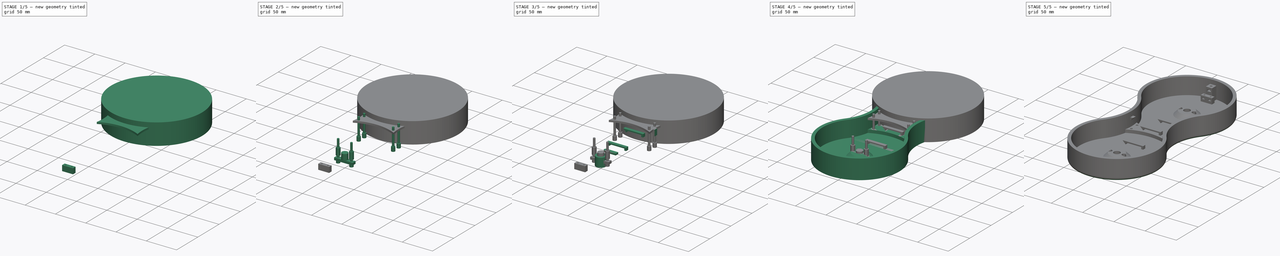
[diagram: build sequence overview — one tinted view per stage of 5, left to right]
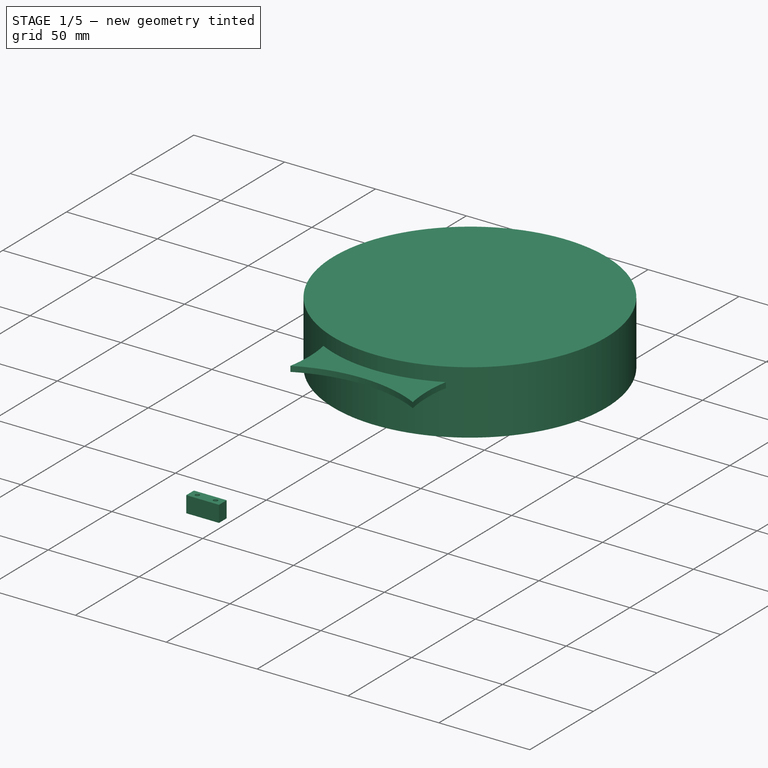
[diagram: stage 1 of 5 — iso view after this stage's code; geometry added in this stage tinted green]
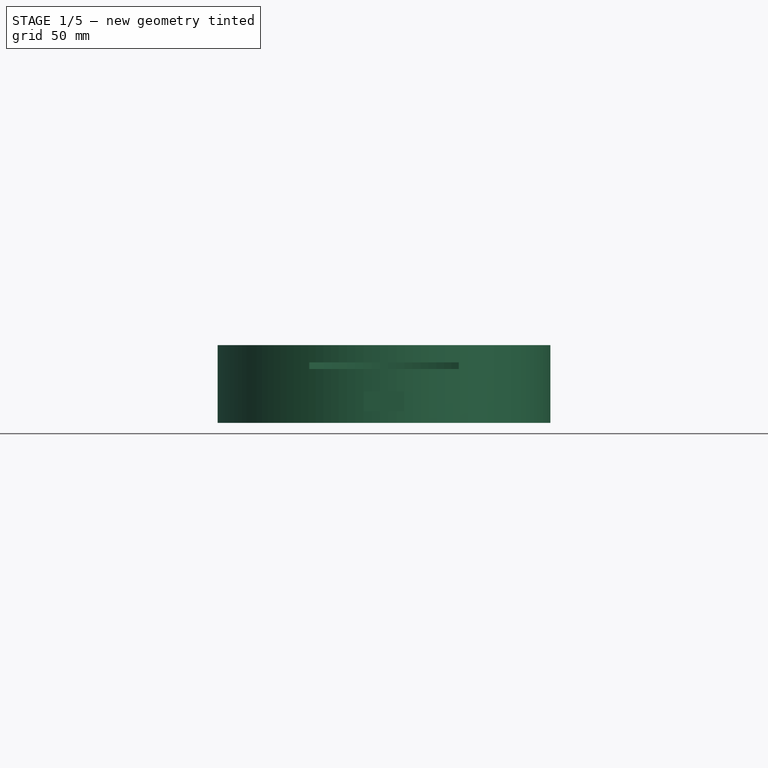
[diagram: stage 1 of 5 — front view after this stage's code; geometry added in this stage tinted green]
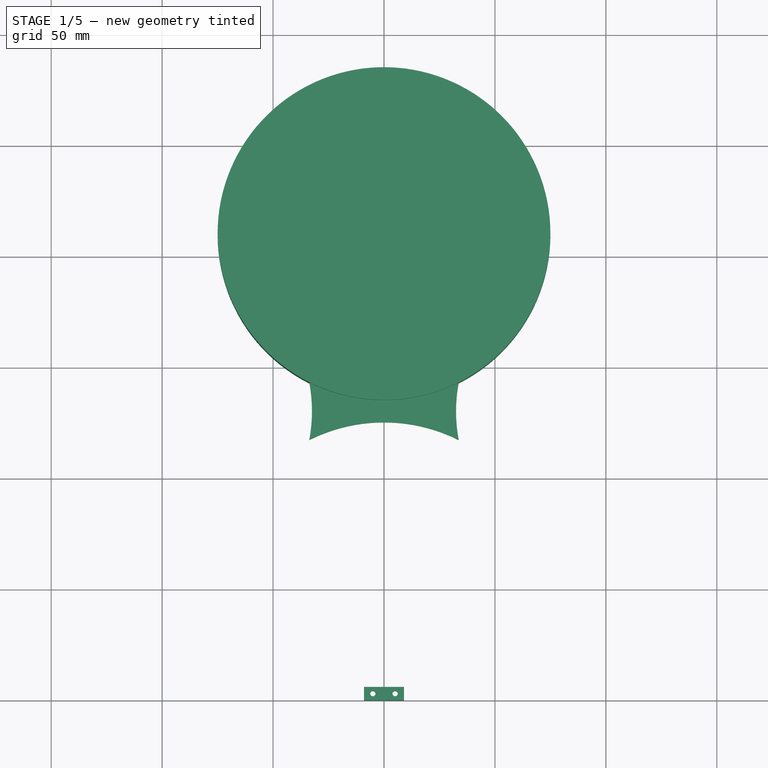
[diagram: stage 1 of 5 — top view after this stage's code; geometry added in this stage tinted green]
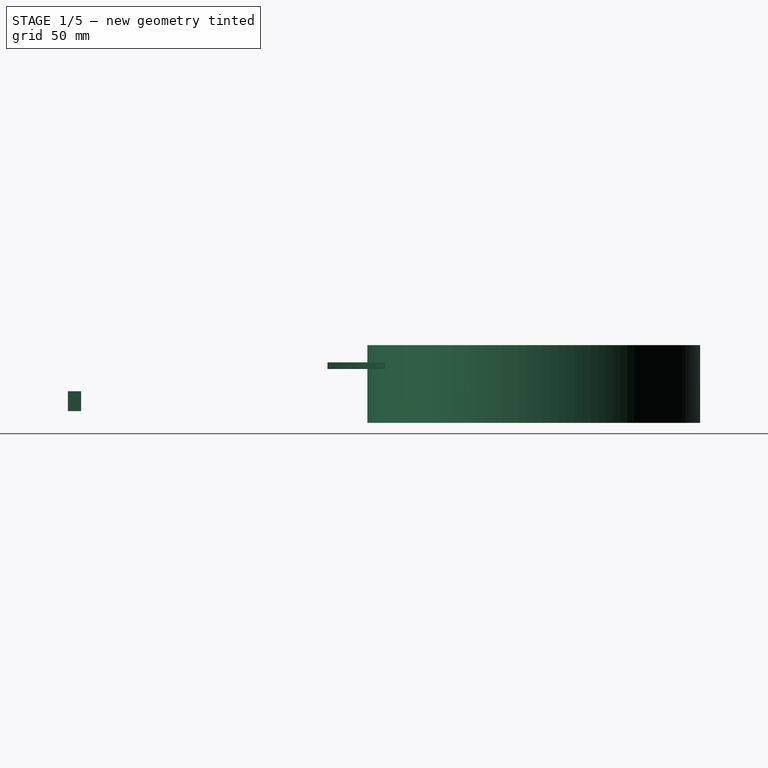
[diagram: stage 1 of 5 — right view after this stage's code; geometry added in this stage tinted green]
FCSTD DOCUMENT  (FreeCAD 0.16R6703 (Git))
Label: Art2BodyB
License: All rights reserved
LicenseURL: http://en.wikipedia.org/wiki/All_rights_reserved
objects: Part::FeaturePython×32, Sketcher::SketchObject×12, PartDesign::Pad×11, Part::MultiFuse×8, Part::Cut×8, Part::Cylinder×6, Part::Box×3, Part::Prism×1, PartDesign::Revolution×1, Part::Thickness×1, Part::Fillet×1, App::DocumentObjectGroup×1
note: 96 computed .brp shape members not serialized (recipe doc carries the construction recipe); baked Part::Feature solids carry a one-line shape summary decoded from their .brp

FEATURE [Part::Cylinder] Cylinder1061  label="M2BoltHead"
  Angle = 360
  Height = 7
  Radius = 2.1
FEATURE [Part::Cylinder] Cylinder1062  label="M2BoltBody"
  Angle = 360
  Height = 30
  Placement = pos=(0,0,6) rot=(0,0,1;0rad)
  Radius = 1.2
FEATURE [Part::MultiFuse] Fusion158  label="M2Bolt "
  Shapes = -> [Cylinder1062,Cylinder1061]
FEATURE [Part::Box] Box  label="Cube"
  Height = 9
  Length = 18
  Width = 6
FEATURE [Sketcher::SketchObject] Sketch079  label="M2NutHousingSketch"
  sketch-geometry (5):
    g0: LineSegment StartX=0 StartY=0 StartZ=0 EndX=1.18357 EndY=2.05 EndZ=0
    g1: LineSegment StartX=1.18357 StartY=2.05 StartZ=0 EndX=21.1836 EndY=2.05 EndZ=0
    g2: LineSegment StartX=21.1836 StartY=2.05 StartZ=0 EndX=21.1836 EndY=-2.05 EndZ=0
    g3: LineSegment StartX=21.1836 StartY=-2.05 StartZ=0 EndX=1.18357 EndY=-2.05 EndZ=0
    g4: LineSegment StartX=1.18357 StartY=-2.05 StartZ=0 EndX=0 EndY=0 EndZ=0
  constraints (14):
    c: Coincident(g-1,g0)
    c: Coincident(g0,g1)
    c: Horizontal(g1)
    c: Coincident(g1,g2)
    c: Vertical(g2)
    c: Coincident(g2,g3)
    c: Horizontal(g3)
    c: Coincident(g3,g4)
    c: Coincident(g4,g0)
    c: Equal(g3,g1)
    c: Equal(g4,g0)
    c: DistanceY(g2) = -4.1
    c: Angle(g-1,g0) = 1.0472
    c: DistanceX(g3) = -20
FEATURE [PartDesign::Pad] Pad048  label="M2NutHousing"
  Length = 1.7
  Length2 = 100
  Sketch = -> Sketch079
  Type = 0
FEATURE [Part::FeaturePython] Clone419  label="Clone of M2NutHousing"  # Draft clone (typed FeaturePython)
  Objects = -> [Pad048]
  Placement = pos=(4,5.7,4) rot=(0,0,-1;1.5708rad)
  Scale = (1,1,1)
FEATURE [Part::FeaturePython] Clone420  label="Clone of M2NutHousing001"  # Draft clone (typed FeaturePython)
  Objects = -> [Pad048]
  Placement = pos=(14,5.7,4) rot=(0,0,-1;1.5708rad)
  Scale = (1,1,1)
FEATURE [Part::FeaturePython] Clone421  label="Clone of M2Bolt 002"  # Draft clone (typed FeaturePython)
  Objects = -> [Fusion158]
  Placement = pos=(4,3,35) rot=(0.707107,0.707107,0;3.14159rad)
  Scale = (1,1,1)
FEATURE [Part::FeaturePython] Clone422  label="Clone of M2Bolt 003"  # Draft clone (typed FeaturePython)
  Objects = -> [Fusion158]
  Placement = pos=(14,3,35) rot=(0.707107,0.707107,0;3.14159rad)
  Scale = (1,1,1)
FEATURE [Part::MultiFuse] Fusion160
  Shapes = -> [Clone422,Clone421,Clone420,Clone419]
FEATURE [Part::Cut] Cut141  label="Art2BOptoPCBFixMaster"
  Base = -> Box
  Tool = -> Fusion160
FEATURE [Part::FeaturePython] Clone424  label="Clone of Art2BOptoPCBFixMaster001"  # Draft clone (typed FeaturePython)
  Objects = -> [Cut141]
  Placement = pos=(9,-44,5) rot=(0,0,1;3.14159rad)
  Scale = (1,1,1)
FEATURE [PartDesign::Pad] Pad049
  Length = 35
  Length2 = 100
  Placement = pos=(0,0,-0.25) rot=(0,0,1;0rad)
  Sketch = -> Sketch029
  Type = 0
FEATURE [Sketcher::SketchObject] Sketch080
  Placement = pos=(0,0,24) rot=(0,0,1;0rad)
  sketch-geometry (6):
    g0: ArcOfCircle CenterX=0 CenterY=0 CenterZ=0 NormalX=0 NormalY=0 NormalZ=1 Radius=75 StartAngle=1.10499 EndAngle=2.0366
    g1: ArcOfCircle CenterX=0 CenterY=160 CenterZ=0 NormalX=0 NormalY=0 NormalZ=1 Radius=75 StartAngle=4.24659 EndAngle=5.17819
    g2: ArcOfCircle CenterX=102.47 CenterY=80 CenterZ=0 NormalX=0 NormalY=0 NormalZ=1 Radius=70 StartAngle=2.95493 EndAngle=3.32825
    g3: ArcOfCircle CenterX=-102.47 CenterY=80 CenterZ=0 NormalX=0 NormalY=0 NormalZ=1 Radius=70 StartAngle=6.09653 EndAngle=6.46984
    g4: LineSegment [constr] StartX=-102.47 StartY=80 StartZ=0 EndX=102.47 EndY=80 EndZ=0
    g5: Circle [constr] CenterX=0 CenterY=160 CenterZ=0 NormalX=0 NormalY=0 NormalZ=1 Radius=60
  constraints (19):
    c: Coincident(g0,g-1)
    c: PointOnObject(g1,g-2)
    c: Coincident(g2,g1)
    c: Coincident(g2,g0)
    c: Coincident(g3,g1)
    c: Coincident(g3,g0)
    c: Equal(g1,g0)
    c: Equal(g3,g2)
    c: Coincident(g4,g3)
    c: Coincident(g4,g2)
    c: Horizontal(g4)
    c: Radius(g0) = 75
    c: DistanceY(g-1,g1) = 160
    c: DistanceY(g-1,g2) = 80
    c: Radius(g2) = 70
    c: Symmetric(g2,g3,g-2)
    c: Coincident(g5,g1)
    c: Radius(g5) = 60
    c: Tangent(g5,g2)
FEATURE [PartDesign::Pad] Pad051
  Length = 3
  Length2 = 100
  Placement = pos=(0,0,24) rot=(0,0,1;0rad)
  Sketch = -> Sketch080
  Type = 0
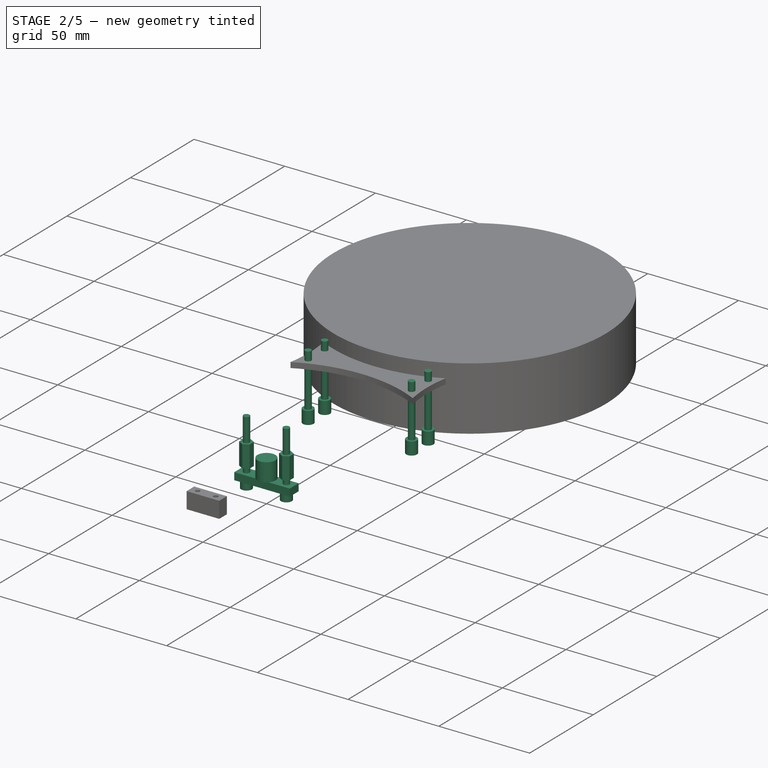
[diagram: stage 2 of 5 — iso view after this stage's code; geometry added in this stage tinted green]
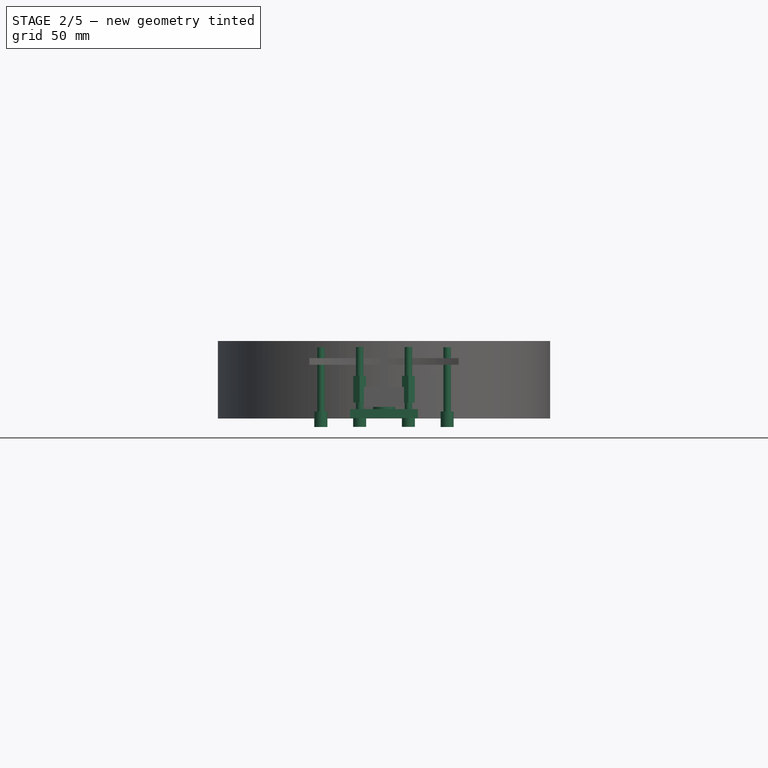
[diagram: stage 2 of 5 — front view after this stage's code; geometry added in this stage tinted green]
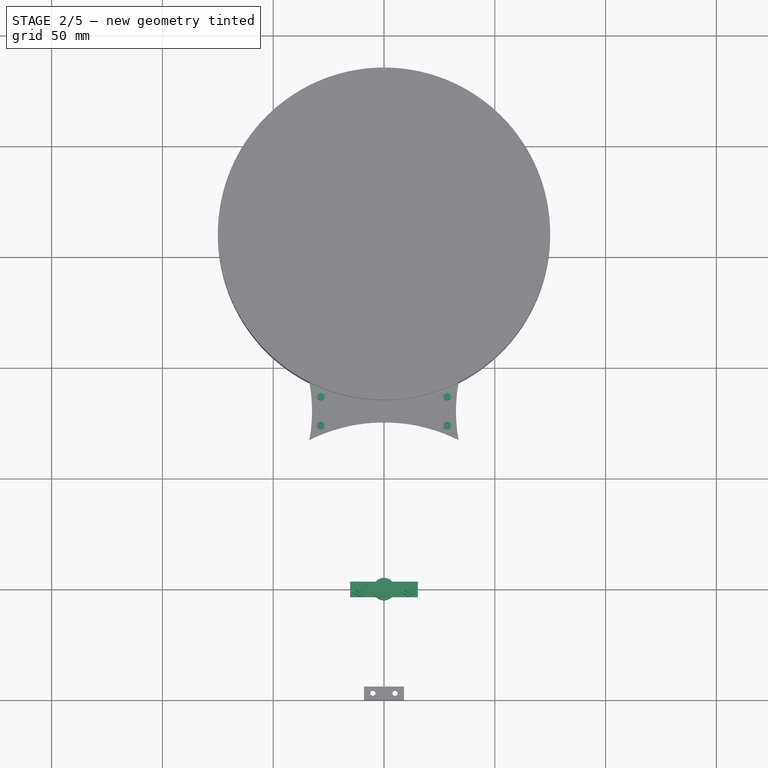
[diagram: stage 2 of 5 — top view after this stage's code; geometry added in this stage tinted green]
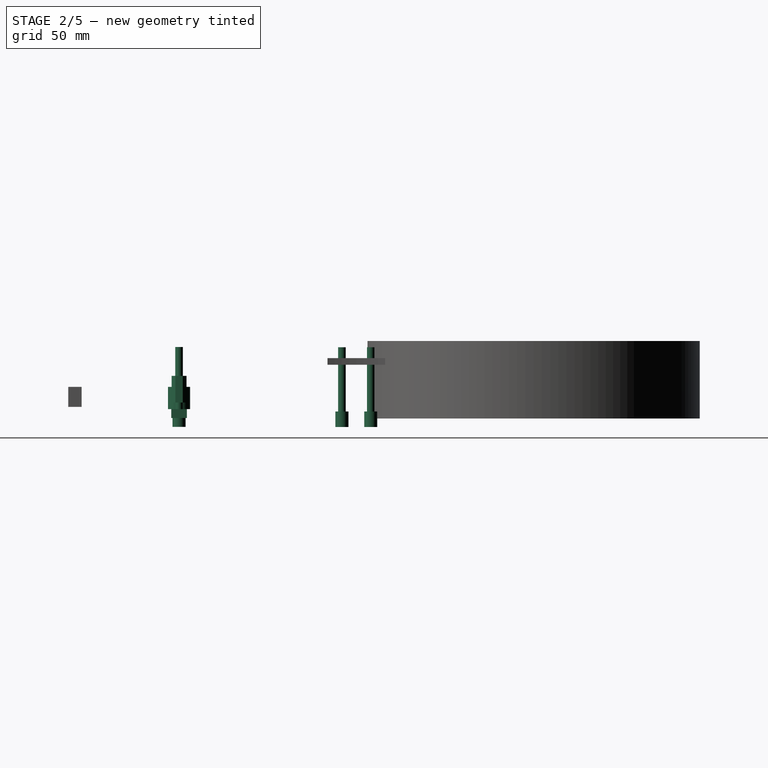
[diagram: stage 2 of 5 — right view after this stage's code; geometry added in this stage tinted green]
FEATURE [Part::Cylinder] Cylinder  label="M3BoltHead"
  Angle = 360
  Height = 7
  Radius = 2.95
FEATURE [Part::Cylinder] Cylinder001  label="M3BoltBody"
  Angle = 360
  Height = 30
  Placement = pos=(0,0,6) rot=(0,0,1;0rad)
  Radius = 1.7
FEATURE [Part::MultiFuse] Fusion  label="M3Bolt"
  Shapes = -> [Cylinder001,Cylinder]
FEATURE [Part::Prism] Prism  label="M3Nut"
  Circumradius = 3.35
  Height = 12
  Polygon = 6
FEATURE [Part::Cylinder] Cylinder1015  label="Cylinder021"
  Angle = 360
  Height = 10
  Placement = pos=(0,0,4) rot=(0,0,1;0rad)
  Radius = 5
FEATURE [Part::Box] Box251  label="Cube015"
  Height = 4
  Length = 30.6
  Placement = pos=(-15.3,-3.5,0) rot=(0,0,1;0rad)
  Width = 7
FEATURE [Part::FeaturePython] Clone137  label="Clone of M3Bolt039"  # Draft clone (typed FeaturePython)
  Objects = -> [Fusion]
  Placement = pos=(11,0,-4) rot=(0,0,1;0rad)
  Scale = (1,1,1)
FEATURE [Part::FeaturePython] Clone138  label="Clone of M3Bolt040"  # Draft clone (typed FeaturePython)
  Objects = -> [Fusion]
  Placement = pos=(-11,0,-4) rot=(0,0,1;0rad)
  Scale = (1,1,1)
FEATURE [Part::FeaturePython] Clone139  label="Clone of M3Nut005"  # Draft clone (typed FeaturePython)
  Objects = -> [Prism]
  Placement = pos=(11,0,7) rot=(0,0,1;0.523599rad)
  Scale = (1,1,1)
FEATURE [Part::FeaturePython] Clone140  label="Clone of M3Nut006"  # Draft clone (typed FeaturePython)
  Objects = -> [Prism]
  Placement = pos=(-11,0,7) rot=(0,0,1;0.523599rad)
  Scale = (1,1,1)
FEATURE [Part::FeaturePython] Clone161  label="Clone of M3Bolt041"  # Draft clone (typed FeaturePython)
  Objects = -> [Fusion]
  Placement = pos=(28.5,73.5,-4.1) rot=(0,0,1;0rad)
  Scale = (1,1,1)
FEATURE [Part::FeaturePython] Clone162  label="Clone of M3Bolt042"  # Draft clone (typed FeaturePython)
  Objects = -> [Fusion]
  Placement = pos=(28.5,86.5,-4.1) rot=(0,0,1;0rad)
  Scale = (1,1,1)
FEATURE [Part::FeaturePython] Clone163  label="Clone of M3Bolt043"  # Draft clone (typed FeaturePython)
  Objects = -> [Fusion]
  Placement = pos=(-28.5,86.5,-4.1) rot=(0,0,1;0rad)
  Scale = (1,1,1)
FEATURE [Part::FeaturePython] Clone164  label="Clone of M3Bolt044"  # Draft clone (typed FeaturePython)
  Objects = -> [Fusion]
  Placement = pos=(-28.5,73.5,-4.1) rot=(0,0,1;0rad)
  Scale = (1,1,1)
FEATURE [Part::FeaturePython] Clone423  label="Clone of Art2BOptoPCBFixMaster"  # Draft clone (typed FeaturePython)
  Objects = -> [Cut141]
  Placement = pos=(-9,204,5) rot=(0,0,1;0rad)
  Scale = (1,1,1)
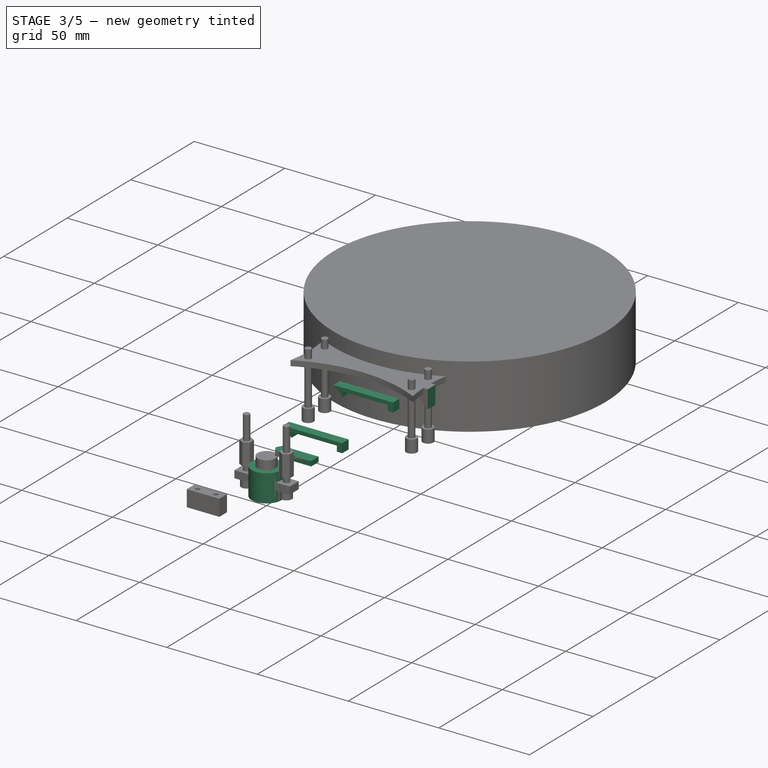
[diagram: stage 3 of 5 — iso view after this stage's code; geometry added in this stage tinted green]
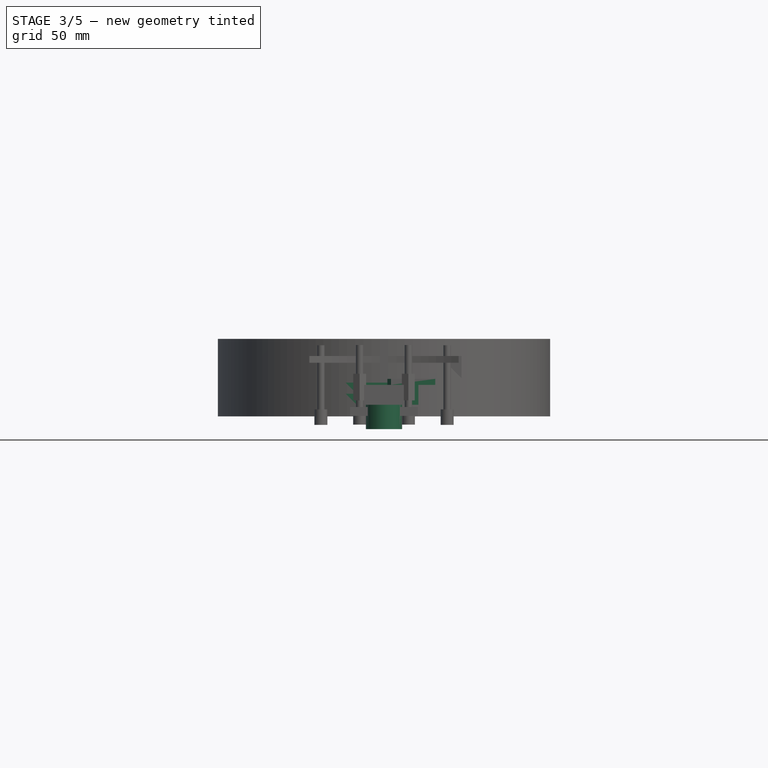
[diagram: stage 3 of 5 — front view after this stage's code; geometry added in this stage tinted green]
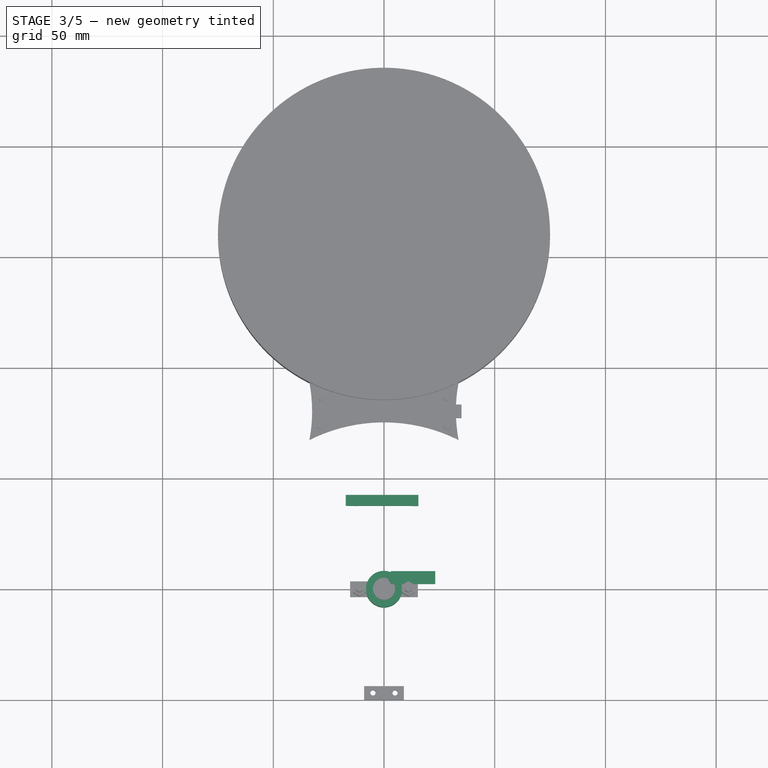
[diagram: stage 3 of 5 — top view after this stage's code; geometry added in this stage tinted green]
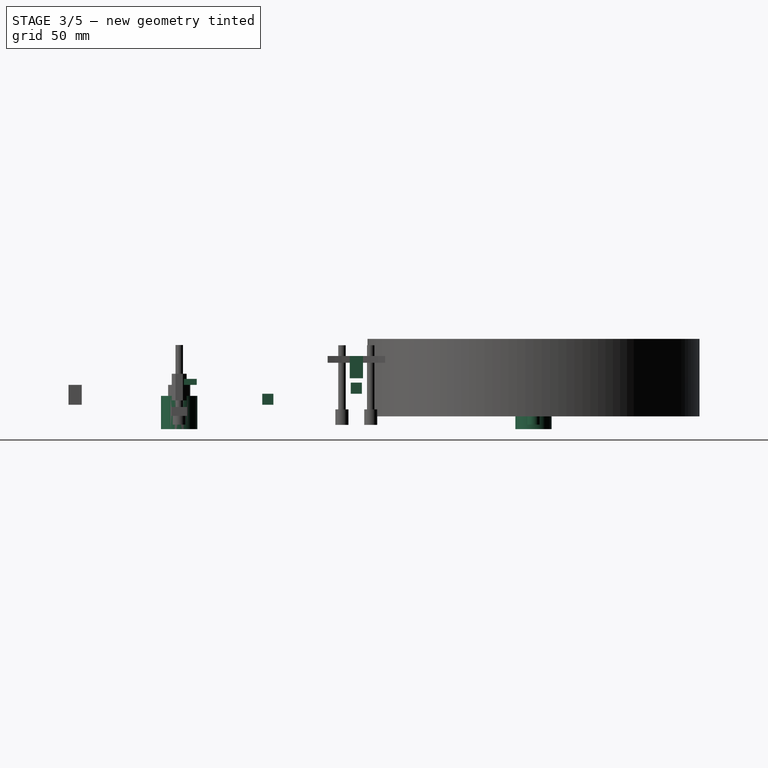
[diagram: stage 3 of 5 — right view after this stage's code; geometry added in this stage tinted green]
FEATURE [Sketcher::SketchObject] Sketch003  label="M3NutHousingSketch"
  sketch-geometry (5):
    g0: LineSegment StartX=0 StartY=0 StartZ=0 EndX=1.67432 EndY=2.9 EndZ=0
    g1: LineSegment StartX=1.67432 StartY=2.9 StartZ=0 EndX=21.6743 EndY=2.9 EndZ=0
    g2: LineSegment StartX=21.6743 StartY=2.9 StartZ=0 EndX=21.6743 EndY=-2.9 EndZ=0
    g3: LineSegment StartX=21.6743 StartY=-2.9 StartZ=0 EndX=1.67432 EndY=-2.9 EndZ=0
    g4: LineSegment StartX=1.67432 StartY=-2.9 StartZ=0 EndX=0 EndY=0 EndZ=0
  constraints (14):
    c: Coincident(g-1,g0)
    c: Coincident(g0,g1)
    c: Horizontal(g1)
    c: Coincident(g1,g2)
    c: Vertical(g2)
    c: Coincident(g2,g3)
    c: Horizontal(g3)
    c: Coincident(g3,g4)
    c: Coincident(g4,g0)
    c: Equal(g3,g1)
    c: Equal(g4,g0)
    c: DistanceY(g2) = -5.8
    c: Angle(g-1,g0) = 1.0472
    c: DistanceX(g3) = -20
FEATURE [PartDesign::Pad] Pad002  label="M3NutHousing"
  Length = 2.7
  Length2 = 100
  Sketch = -> Sketch003
  Type = 0
FEATURE [Part::Cylinder] Cylinder1003  label="Bearing625ZZMaster"
  Angle = 360
  Height = 15
  Radius = 8.2
FEATURE [Sketcher::SketchObject] Sketch025
  sketch-geometry (3):
    g0: LineSegment StartX=0 StartY=0 StartZ=0 EndX=0 EndY=10 EndZ=0
    g1: LineSegment StartX=0 StartY=10 StartZ=0 EndX=10 EndY=0 EndZ=0
    g2: LineSegment StartX=10 StartY=0 StartZ=0 EndX=0 EndY=0 EndZ=0
  constraints (8):
    c: Coincident(g-1,g0)
    c: PointOnObject(g0,g-2)
    c: Coincident(g0,g1)
    c: PointOnObject(g1,g-1)
    c: Coincident(g1,g2)
    c: Coincident(g2,g0)
    c: DistanceY(g0) = 10
    c: Angle(g1,g2) = 0.785398
FEATURE [PartDesign::Pad] Pad017  label="Art2CoverArmSupportMaster"
  Length = 6
  Length2 = 100
  Sketch = -> Sketch025
  Type = 0
FEATURE [Part::FeaturePython] Clone119  label="Clone of M3NutHousing009"  # Draft clone (typed FeaturePython)
  Objects = -> [Pad002]
  Placement = pos=(1.5,5,14) rot=(0,0,1;0rad)
  Scale = (1,1,1)
FEATURE [Part::FeaturePython] Clone136  label="Clone of Bearing625ZZMaster"  # Draft clone (typed FeaturePython)
  Objects = -> [Cylinder1003]
  Placement = pos=(0,0,-6) rot=(0,0,1;0rad)
  Scale = (1,1,1)
FEATURE [Part::MultiFuse] Fusion062  label="Bearing625zzHoles"
  Shapes = -> [Clone140,Clone139,Box251,Clone137,Clone138,Cylinder1015,Clone136]
FEATURE [Part::FeaturePython] Clone155  label="Clone of Art2CoverArmSupportMaster005"  # Draft clone (typed FeaturePython)
  Objects = -> [Pad017]
  Placement = pos=(35,77,27) rot=(-0.57735,0.57735,0.57735;2.0944rad)
  Scale = (1,1,1)
FEATURE [Sketcher::SketchObject] Sketch028
  Placement = pos=(0,0,0) rot=(1,0,0;1.5708rad)
  sketch-geometry (7):
    g0: LineSegment StartX=12.5 StartY=0 StartZ=0 EndX=12.5 EndY=3 EndZ=0
    g1: LineSegment StartX=12.5 StartY=3 StartZ=0 EndX=-12.5 EndY=3 EndZ=0
    g2: LineSegment StartX=-12.5 StartY=3 StartZ=0 EndX=-12.5 EndY=0.2 EndZ=0
    g3: LineSegment StartX=-12.5 StartY=0.2 StartZ=0 EndX=-17.3 EndY=5 EndZ=0
    g4: LineSegment StartX=-17.3 StartY=5 StartZ=0 EndX=15.5 EndY=5 EndZ=0
    g5: LineSegment StartX=15.5 StartY=5 StartZ=0 EndX=15.5 EndY=0 EndZ=0
    g6: LineSegment StartX=15.5 StartY=0 StartZ=0 EndX=12.5 EndY=0 EndZ=0
  constraints (21):
    c: Vertical(g0)
    c: Coincident(g0,g1)
    c: Horizontal(g1)
    c: Coincident(g1,g2)
    c: Coincident(g2,g3)
    c: Horizontal(g4)
    c: Coincident(g4,g5)
    c: Vertical(g5)
    c: Coincident(g5,g6)
    c: Coincident(g6,g0)
    c: Coincident(g3,g4)
    c: Angle(g-1,g3) = 2.35619
    c: Vertical(g2)
    c: DistanceY(g0,g4) = 2
    c: Horizontal(g6)
    c: DistanceX(g6) = -3
    c: DistanceY(g5) = -5
    c: PointOnObject(g0,g-1)
    c: DistanceX(g1) = -25
    c: DistanceY(g3,g2) = -4.8
    c: DistanceX(g-1,g0) = 12.5
FEATURE [PartDesign::Pad] Pad020  label="Art2WireHolder"
  Length = 5
  Length2 = 100
  Midplane = true
  Placement = pos=(0,0,0) rot=(1,0,0;1.5708rad)
  Sketch = -> Sketch028
  Type = 0
FEATURE [Part::FeaturePython] Clone156  label="Clone of Art2WireHolder"  # Draft clone (typed FeaturePython)
  Objects = -> [Pad020]
  Placement = pos=(0,80,10) rot=(1,0,0;1.5708rad)
  Scale = (1,1,1)
FEATURE [Part::FeaturePython] Clone157  label="Clone of Art2WireHolder001"  # Draft clone (typed FeaturePython)
  Objects = -> [Pad020]
  Placement = pos=(0,40,5) rot=(1,0,0;1.5708rad)
  Scale = (1,1,1)
FEATURE [Part::FeaturePython] Clone158  label="Clone of Art2WireHolder002"  # Draft clone (typed FeaturePython)
  Objects = -> [Pad020]
  Placement = pos=(0,120,5) rot=(1,0,0;1.5708rad)
  Scale = (1,1,1)
FEATURE [Part::FeaturePython] Clone159  label="Clone of Bearing622zzHoles001"  # Draft clone (typed FeaturePython)
  Objects = -> [Fusion062]
  Scale = (1,1,1)
FEATURE [Part::FeaturePython] Clone160  label="Clone of Bearing622zzHoles002"  # Draft clone (typed FeaturePython)
  Objects = -> [Fusion062]
  Placement = pos=(0,160,0) rot=(0,0,1;0rad)
  Scale = (1,1,1)
FEATURE [Part::MultiFuse] Fusion065
  Shapes = -> [Clone159,Clone163,Clone164,Clone162,Clone161,Clone160]
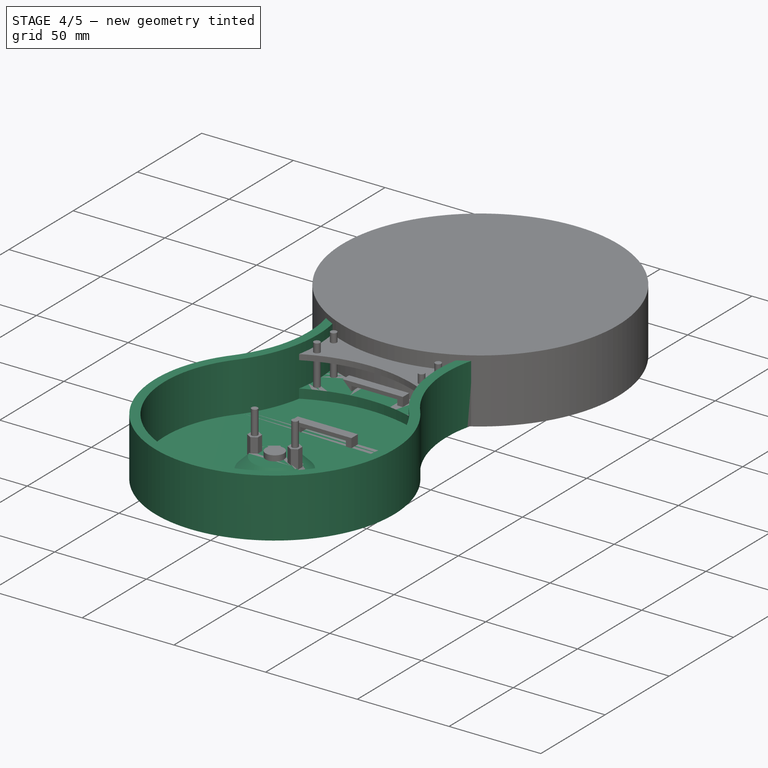
[diagram: stage 4 of 5 — iso view after this stage's code; geometry added in this stage tinted green]
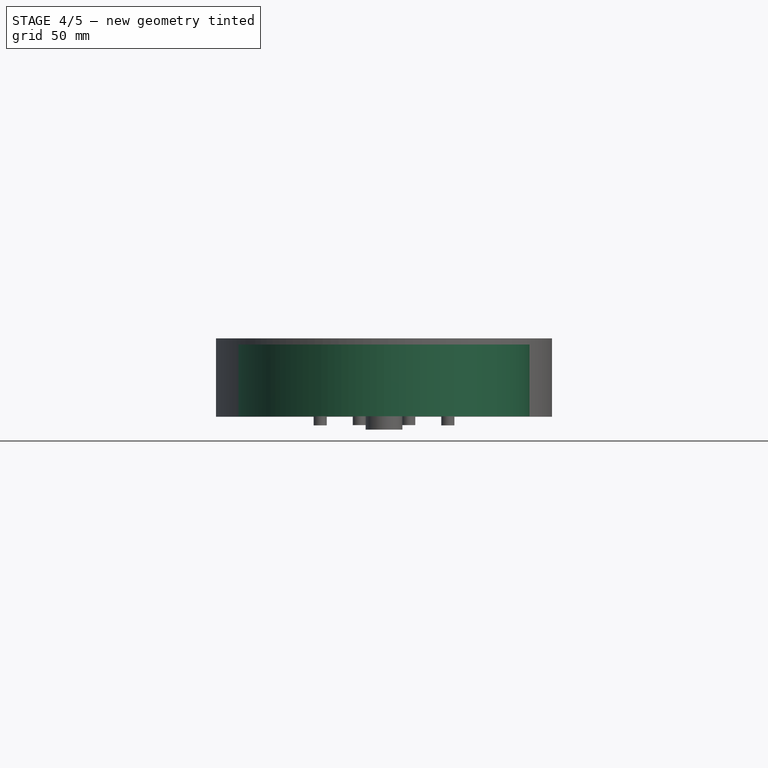
[diagram: stage 4 of 5 — front view after this stage's code; geometry added in this stage tinted green]
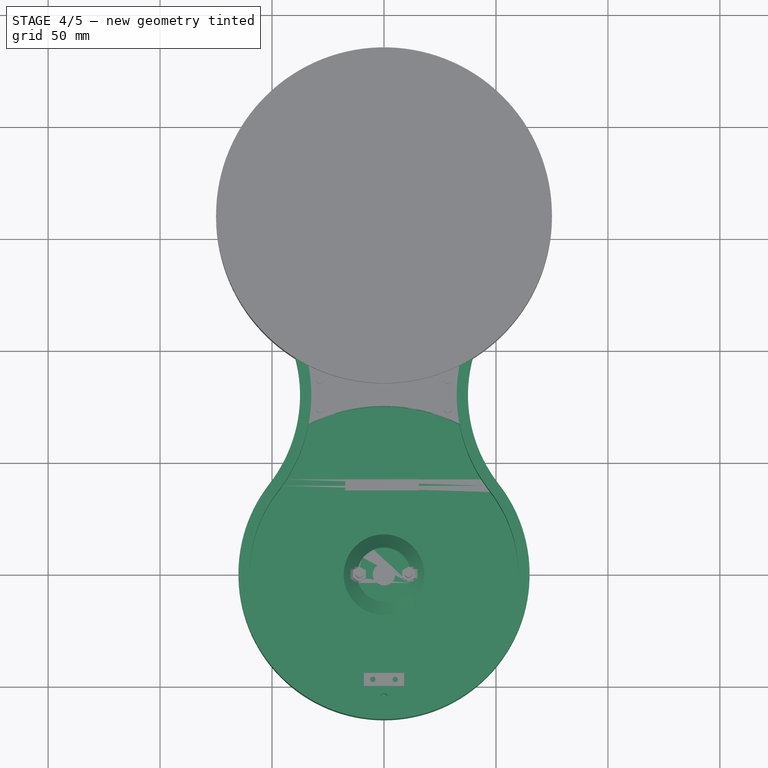
[diagram: stage 4 of 5 — top view after this stage's code; geometry added in this stage tinted green]
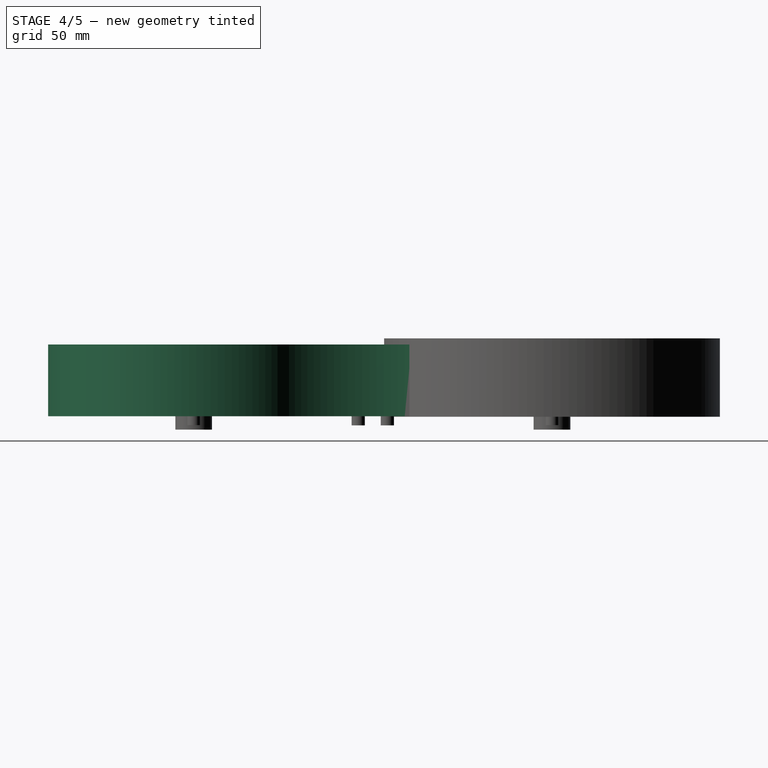
[diagram: stage 4 of 5 — right view after this stage's code; geometry added in this stage tinted green]
FEATURE [Sketcher::SketchObject] Sketch016
  sketch-geometry (4):
    g0: LineSegment StartX=0 StartY=0 StartZ=0 EndX=0 EndY=18 EndZ=0
    g1: LineSegment StartX=0 StartY=18 StartZ=0 EndX=6 EndY=12 EndZ=0
    g2: LineSegment StartX=6 StartY=12 StartZ=0 EndX=6 EndY=0 EndZ=0
    g3: LineSegment StartX=0 StartY=0 StartZ=0 EndX=6 EndY=0 EndZ=0
  constraints (11):
    c: Coincident(g0,g-1)
    c: Vertical(g0)
    c: Coincident(g1,g0)
    c: Coincident(g2,g1)
    c: PointOnObject(g2,g-1)
    c: Vertical(g2)
    c: Coincident(g3,g-1)
    c: Coincident(g3,g2)
    c: DistanceY(g2) = -12
    c: DistanceX(g3) = 6
    c: Angle(g1,g-1) = 0.785398
FEATURE [PartDesign::Revolution] Revolution003  label="625ZZBearingHousingNoHoles"
  Angle = 360
  Axis = (1,0,0)
  Base = (0,0,0)
  ReferenceAxis = -> Sketch016 [H_Axis]
  Sketch = -> Sketch016
FEATURE [Sketcher::SketchObject] Sketch020
  sketch-geometry (4):
    g0: ArcOfCircle CenterX=0 CenterY=0 CenterZ=0 NormalX=0 NormalY=0 NormalZ=1 Radius=65 StartAngle=2.47872 EndAngle=6.94606
    g1: ArcOfCircle CenterX=102.47 CenterY=80 CenterZ=0 NormalX=0 NormalY=0 NormalZ=1 Radius=65 StartAngle=2.47872 EndAngle=3.80447
    g2: ArcOfCircle CenterX=-102.47 CenterY=80 CenterZ=0 NormalX=0 NormalY=0 NormalZ=1 Radius=65 StartAngle=5.62031 EndAngle=6.94606
    g3: ArcOfCircle CenterX=0 CenterY=160 CenterZ=0 NormalX=0 NormalY=0 NormalZ=1 Radius=65 StartAngle=5.62031 EndAngle=10.0877
  constraints (15):
    c: Coincident(g0,g-1)
    c: Coincident(g1,g0)
    c: Coincident(g2,g0)
    c: Coincident(g3,g1)
    c: Equal(g1,g2)
    c: Equal(g3,g0)
    c: Tangent(g1,g3)
    c: Coincident(g2,g3)
    c: Tangent(g2,g3)
    c: Tangent(g1,g0)
    c: Equal(g0,g2)
    c: Tangent(g0,g2)
    c: DistanceY(g-1,g3) = 160
    c: Radius(g0) = 65
    c: PointOnObject(g3,g-2)
FEATURE [PartDesign::Pad] Pad013
  Length = 32
  Length2 = 100
  Sketch = -> Sketch020
  Type = 0
FEATURE [Part::Thickness] Thickness001  label="Art2ArmMaster"
  Faces = -> Pad013 [Face6]
  Intersection = false
  Join = 0
  Mode = 0
  SelfIntersection = false
  Value = -5
FEATURE [Sketcher::SketchObject] Sketch023
  Placement = pos=(0,0,5) rot=(0,0,1;0rad)
  sketch-geometry (5):
    g0: ArcOfCircle CenterX=0 CenterY=0 CenterZ=0 NormalX=0 NormalY=0 NormalZ=1 Radius=75 StartAngle=1.08528 EndAngle=2.05631
    g1: ArcOfCircle CenterX=0 CenterY=160 CenterZ=0 NormalX=0 NormalY=0 NormalZ=1 Radius=75 StartAngle=4.22687 EndAngle=5.19791
    g2: ArcOfCircle CenterX=115 CenterY=80 CenterZ=0 NormalX=0 NormalY=0 NormalZ=1 Radius=81.1591 StartAngle=2.97238 EndAngle=3.3108
    g3: ArcOfCircle CenterX=-115 CenterY=80 CenterZ=0 NormalX=0 NormalY=0 NormalZ=1 Radius=81.1591 StartAngle=6.11398 EndAngle=6.4524
    g4: LineSegment [constr] StartX=-115 StartY=80 StartZ=0 EndX=115 EndY=80 EndZ=0
  constraints (17):
    c: Coincident(g0,g-1)
    c: PointOnObject(g1,g-2)
    c: Coincident(g2,g1)
    c: Coincident(g2,g0)
    c: Coincident(g3,g1)
    c: Coincident(g3,g0)
    c: Equal(g1,g0)
    c: Equal(g3,g2)
    c: Coincident(g4,g3)
    c: Coincident(g4,g2)
    c: Horizontal(g4)
    c: Radius(g0) = 75
    c: DistanceY(g-1,g1) = 160
    c: DistanceY(g-1,g2) = 80
    c: DistanceX(g4) = 230
    c: DistanceX(g-1,g2) = 115
    c: DistanceX(g0,g0) = 70
FEATURE [PartDesign::Pad] Pad015  label="Art2BodyUnionSupporMaster"
  Length = 5
  Length2 = 100
  Placement = pos=(0,0,5) rot=(0,0,1;0rad)
  Sketch = -> Sketch023
  Type = 0
FEATURE [Part::Box] Box250  label="Cube014"
  Height = 20
  Length = 10
  Width = 10
FEATURE [Part::FeaturePython] Clone118  label="Clone of M3Bolt037"  # Draft clone (typed FeaturePython)
  Objects = -> [Fusion]
  Placement = pos=(5,5,40) rot=(1,0,0;3.14159rad)
  Scale = (1,1,1)
FEATURE [Part::MultiFuse] Fusion051
  Shapes = -> [Clone118,Clone119]
FEATURE [Part::Cut] Cut040  label="Art2BodyCoverFix"
  Base = -> Box250
  Tool = -> Fusion051
FEATURE [Part::FeaturePython] Clone148  label="Clone of Art2BodyCoverFix001"  # Draft clone (typed FeaturePython)
  Objects = -> [Cut040]
  Placement = pos=(-5,220,5) rot=(0,0,-1;1.5708rad)
  Scale = (1,1,1)
FEATURE [Part::FeaturePython] Clone149  label="Clone of Art2CoverArmSupportMaster004"  # Draft clone (typed FeaturePython)
  Objects = -> [Pad017]
  Placement = pos=(-35,77,27) rot=(-1,0,0;1.5708rad)
  Scale = (1,1,1)
FEATURE [Part::FeaturePython] Clone150  label="Clone of Art2BodyUnionSupporMaster002"  # Draft clone (typed FeaturePython)
  Objects = -> [Pad015]
  Placement = pos=(0,0,5) rot=(0,0,1;0rad)
  Scale = (1,1,1)
FEATURE [Part::FeaturePython] Clone151  label="Clone of Art2ArmMaster002"  # Draft clone (typed FeaturePython)
  Objects = -> [Thickness001]
  Scale = (1,1,1)
FEATURE [Part::FeaturePython] Clone152  label="Clone of 625ZZBearingHousingNoHoles001"  # Draft clone (typed FeaturePython)
  Objects = -> [Revolution003]
  Placement = pos=(0,0,5) rot=(0,-1,0;1.5708rad)
  Scale = (1,1,1)
FEATURE [Part::FeaturePython] Clone153  label="Clone of 625ZZBearingHousingNoHoles002"  # Draft clone (typed FeaturePython)
  Objects = -> [Revolution003]
  Placement = pos=(0,160,5) rot=(0,-1,0;1.5708rad)
  Scale = (1,1,1)
FEATURE [Part::FeaturePython] Clone154  label="Clone of Art2BodyCoverFix002"  # Draft clone (typed FeaturePython)
  Objects = -> [Cut040]
  Placement = pos=(5,-60,5) rot=(0,0,1;1.5708rad)
  Scale = (1,1,1)
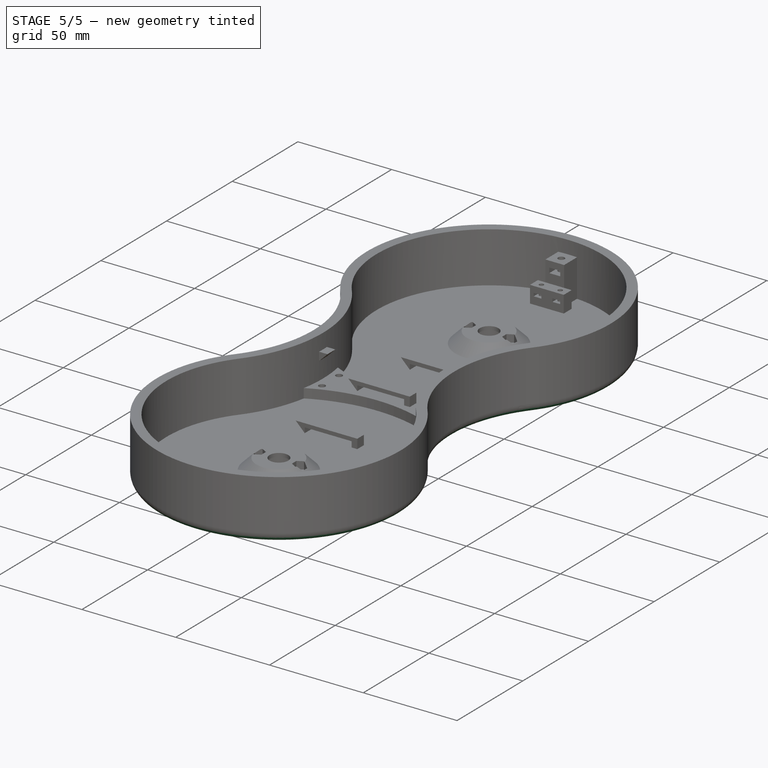
[diagram: stage 5 of 5 — iso view after this stage's code; geometry added in this stage tinted green]
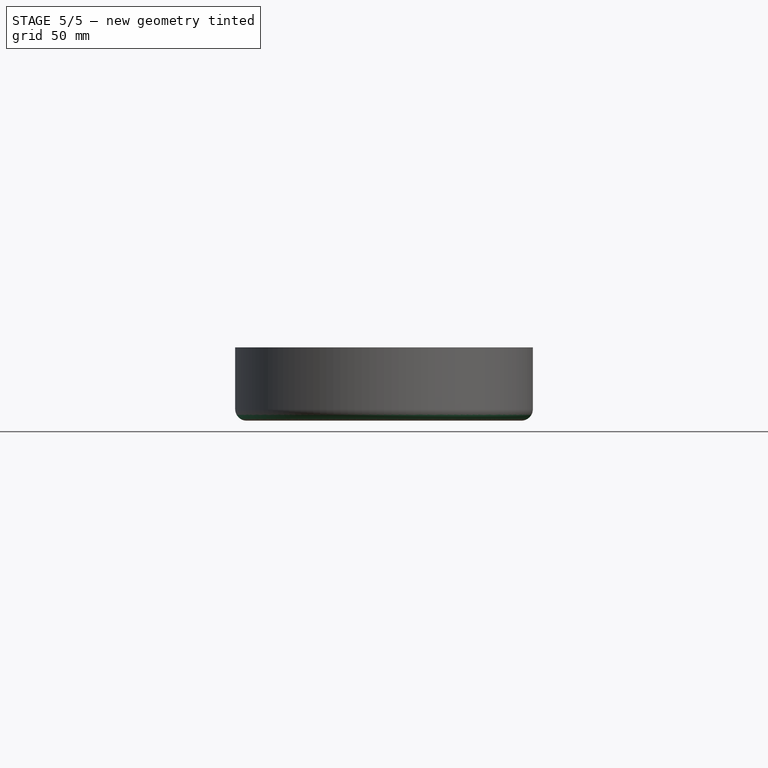
[diagram: stage 5 of 5 — front view after this stage's code; geometry added in this stage tinted green]
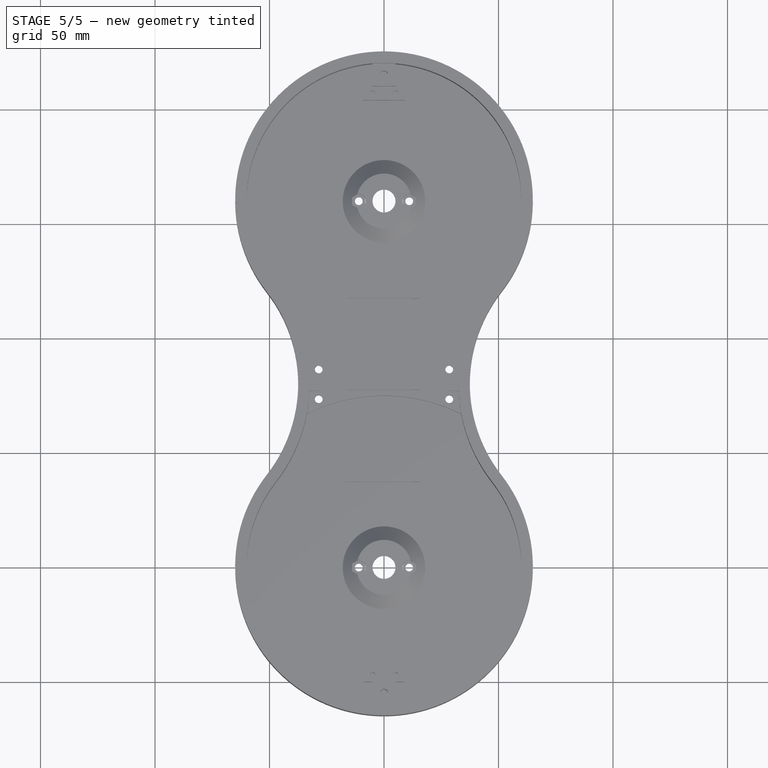
[diagram: stage 5 of 5 — top view after this stage's code; geometry added in this stage tinted green]
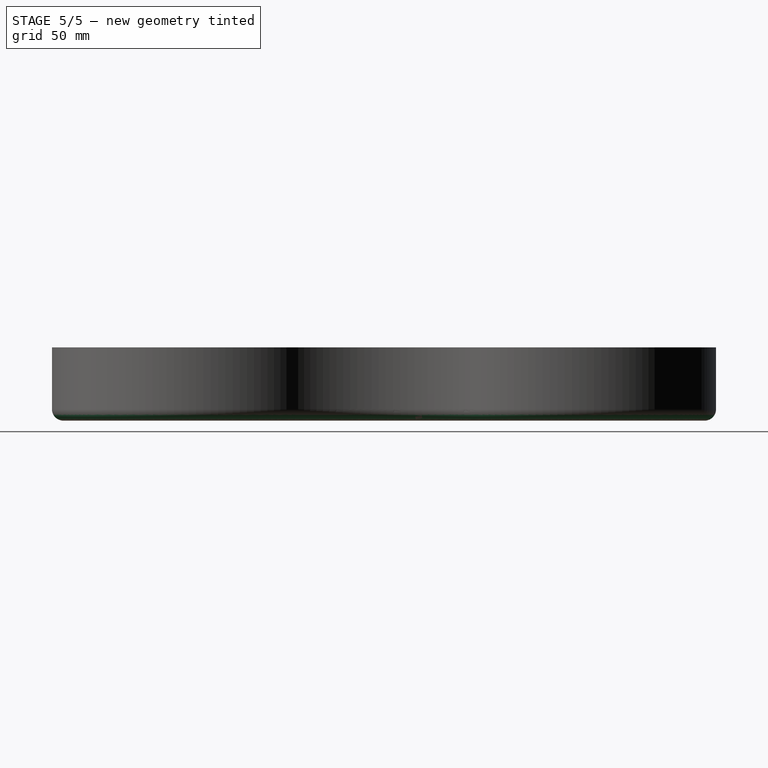
[diagram: stage 5 of 5 — right view after this stage's code; geometry added in this stage tinted green]
FEATURE [Part::MultiFuse] Fusion064
  Shapes = -> [Clone158,Clone154,Clone150,Clone155,Clone153,Clone149,Clone152,Clone156,Clone157,Clone148,Clone151]
FEATURE [Part::Cut] Cut057  label="Cut126"
  Base = -> Fusion064
  Tool = -> Fusion065
FEATURE [Part::MultiFuse] Fusion161
  Shapes = -> [Cut057,Clone424,Clone423]
FEATURE [Part::Fillet] Fillet  label="Art2BodyB"
  Base = -> Fusion161
  Edges = 4 edges r=5: [Edge3,Edge6,Edge9,Edge11]
FEATURE [App::DocumentObjectGroup] Group  label="Master"
  Group = -> [Fusion,Pad002,Prism,Revolution003,Cylinder1003,Thickness001,Pad015,Pad017,Cut040,Fusion062,Pad020,Fusion158,Pad048,Cut141]
FEATURE [Part::FeaturePython] Clone  label="Clone of Art2BodyB"  # Draft clone (typed FeaturePython)
  Objects = -> [Fillet]
  Scale = (1,1,1)
FEATURE [Part::FeaturePython] Clone425  label="Clone of Art2BodyB001"  # Draft clone (typed FeaturePython)
  Objects = -> [Fillet]
  Scale = (1,1,1)
FEATURE [Sketcher::SketchObject] Sketch029
  Placement = pos=(0,0,-0.25) rot=(0,0,1;0rad)
  sketch-geometry (1):
    g0: Circle CenterX=0 CenterY=160 CenterZ=0 NormalX=0 NormalY=0 NormalZ=1 Radius=75
  constraints (3):
    c: PointOnObject(g0,g-2)
    c: DistanceY(g-1,g0) = 160
    c: Radius(g0) = 75
FEATURE [Sketcher::SketchObject] Sketch027
  sketch-geometry (4):
    g0: ArcOfCircle CenterX=102.47 CenterY=80 CenterZ=0 NormalX=0 NormalY=0 NormalZ=1 Radius=65 StartAngle=2.47872 EndAngle=3.39457
    g1: ArcOfCircle CenterX=-102.47 CenterY=80 CenterZ=0 NormalX=0 NormalY=0 NormalZ=1 Radius=65 StartAngle=6.03021 EndAngle=6.94606
    g2: ArcOfCircle CenterX=0 CenterY=160 CenterZ=0 NormalX=0 NormalY=0 NormalZ=1 Radius=65.0004 StartAngle=5.62031 EndAngle=10.0877
    g3: ArcOfCircle CenterX=0 CenterY=0 CenterZ=0 NormalX=0 NormalY=0 NormalZ=1 Radius=75 StartAngle=1.01551 EndAngle=2.12608
  constraints (15):
    c: Coincident(g2,g0)
    c: Equal(g0,g1)
    c: Tangent(g0,g2)
    c: Coincident(g1,g2)
    c: Tangent(g1,g2)
    c: DistanceY(g-1,g2) = 160
    c: PointOnObject(g2,g-2)
    c: Coincident(g3,g-1)
    c: Radius(g3) = 75
    c: Symmetric(g0,g1,g-2)
    c: Radius(g0) = 65
    c: DistanceY(g-1,g0) = 80
    c: DistanceX(g-1,g0) = 102.47
    c: Coincident(g0,g3)
    c: Coincident(g3,g1)
FEATURE [PartDesign::Pad] Pad
  Length = 4.75
  Length2 = 100
  Sketch = -> Sketch027
  Type = 0
FEATURE [Part::Cut] Cut
  Base = -> Clone
  Tool = -> Pad049
FEATURE [Part::Cut] Cut142  label="Cut146"
  Base = -> Cut
  Tool = -> Pad
FEATURE [Sketcher::SketchObject] Sketch
  Placement = pos=(0,0,-0.25) rot=(0,0,1;0rad)
  sketch-geometry (1):
    g0: Circle CenterX=0 CenterY=0 CenterZ=0 NormalX=0 NormalY=0 NormalZ=1 Radius=75
  constraints (2):
    c: Coincident(g0,g-1)
    c: Radius(g0) = 75
FEATURE [PartDesign::Pad] Pad050
  Length = 35
  Length2 = 100
  Placement = pos=(0,0,-0.25) rot=(0,0,1;0rad)
  Sketch = -> Sketch
  Type = 0
FEATURE [Sketcher::SketchObject] Sketch030
  Placement = pos=(0,0,4.75) rot=(0,0,1;0rad)
  sketch-geometry (5):
    g0: ArcOfCircle CenterX=0 CenterY=0 CenterZ=0 NormalX=0 NormalY=0 NormalZ=1 Radius=75 StartAngle=0.927295 EndAngle=2.2143
    g1: ArcOfCircle CenterX=0 CenterY=160 CenterZ=0 NormalX=0 NormalY=0 NormalZ=1 Radius=75 StartAngle=4.06889 EndAngle=5.35589
    g2: ArcOfCircle CenterX=115 CenterY=80 CenterZ=0 NormalX=0 NormalY=0 NormalZ=1 Radius=72.8011 StartAngle=2.86329 EndAngle=3.41989
    g3: ArcOfCircle CenterX=-115 CenterY=80 CenterZ=0 NormalX=0 NormalY=0 NormalZ=1 Radius=72.8011 StartAngle=6.00489 EndAngle=6.56148
    g4: LineSegment [constr] StartX=-115 StartY=80 StartZ=0 EndX=115 EndY=80 EndZ=0
  constraints (17):
    c: Coincident(g0,g-1)
    c: PointOnObject(g1,g-2)
    c: Coincident(g2,g1)
    c: Coincident(g2,g0)
    c: Coincident(g3,g1)
    c: Coincident(g3,g0)
    c: Equal(g1,g0)
    c: Equal(g3,g2)
    c: Coincident(g4,g3)
    c: Coincident(g4,g2)
    c: Horizontal(g4)
    c: Radius(g0) = 75
    c: DistanceY(g-1,g1) = 160
    c: DistanceY(g-1,g2) = 80
    c: DistanceX(g4) = 230
    c: DistanceX(g-1,g2) = 115
    c: DistanceX(g0,g0) = 90
FEATURE [PartDesign::Pad] Pad021
  Length = 35
  Length2 = 100
  Placement = pos=(0,0,4.75) rot=(0,0,1;0rad)
  Sketch = -> Sketch030
  Type = 0
FEATURE [Part::Cut] Cut143
  Base = -> Clone425
  Tool = -> Pad050
FEATURE [Part::Cut] Cut144  label="Art2BodyBSmall2"
  Base = -> Cut143
  Tool = -> Pad021
FEATURE [Part::Cut] Cut145  label="Art2BodyBSmall1"
  Base = -> Cut142
  Tool = -> Pad051
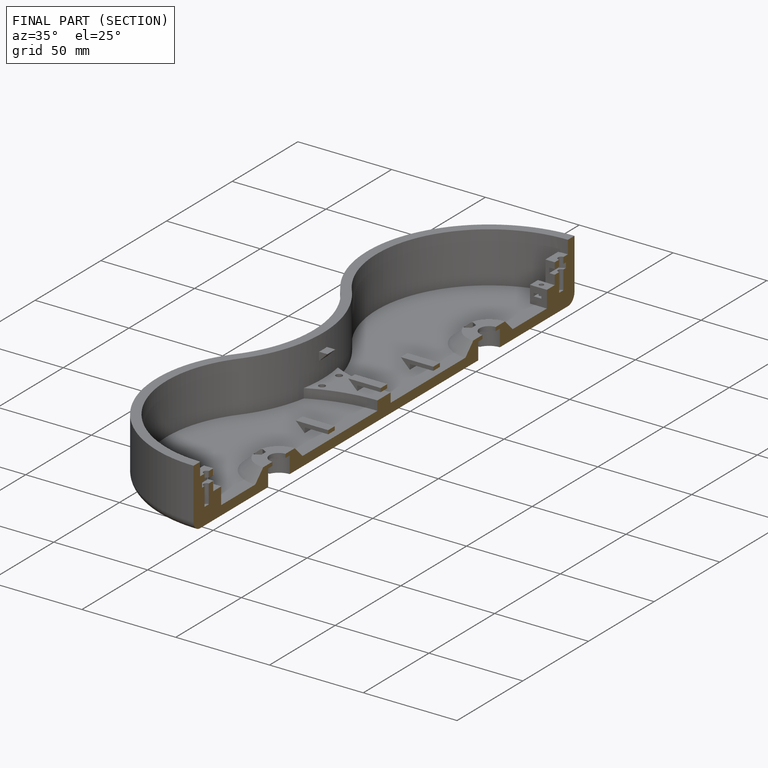
[diagram: finished part — half-section view (interior)]
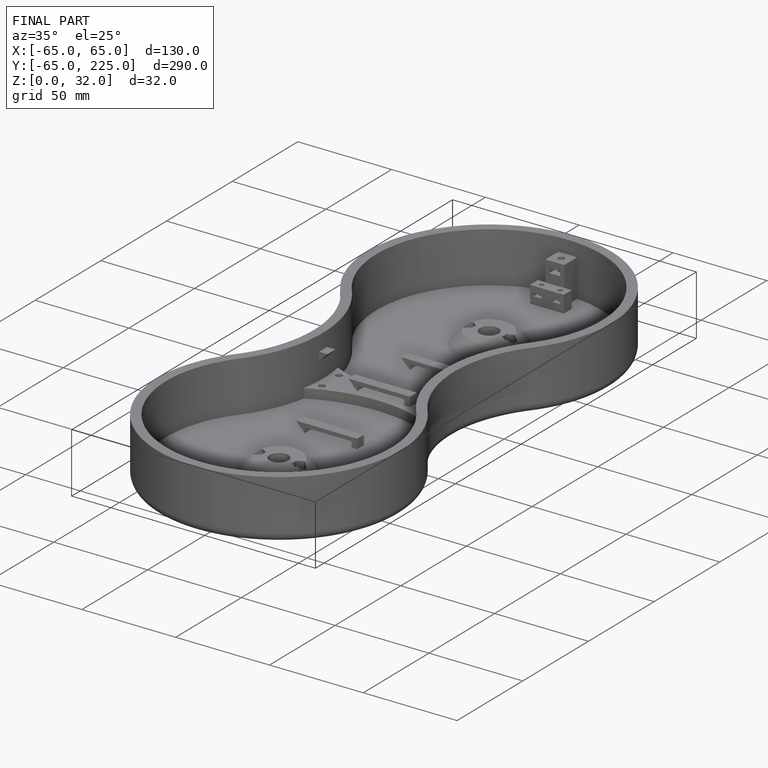
[diagram: finished part — iso view with bounding-box wireframe]
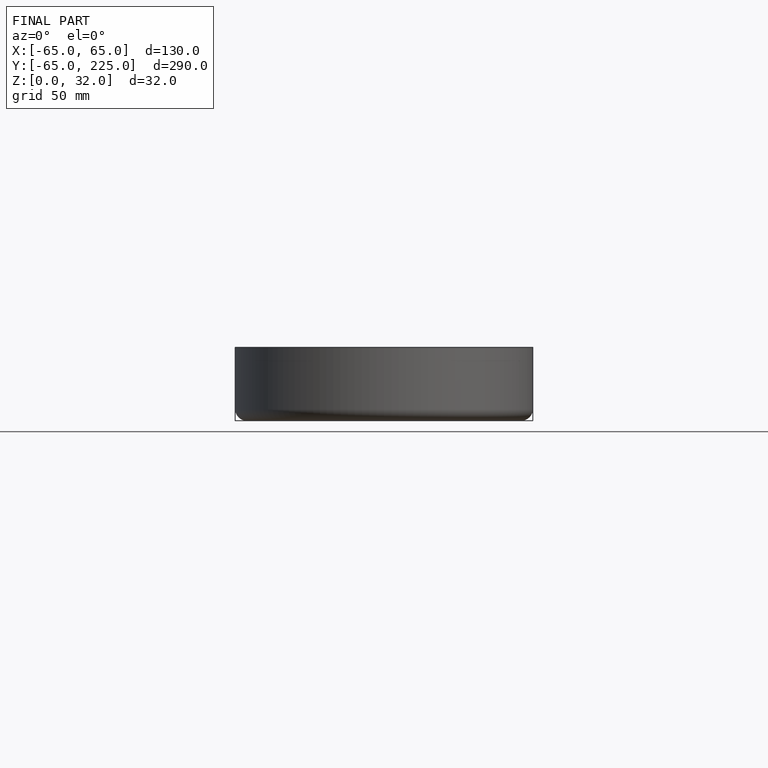
[diagram: finished part — front view with bounding-box wireframe]
